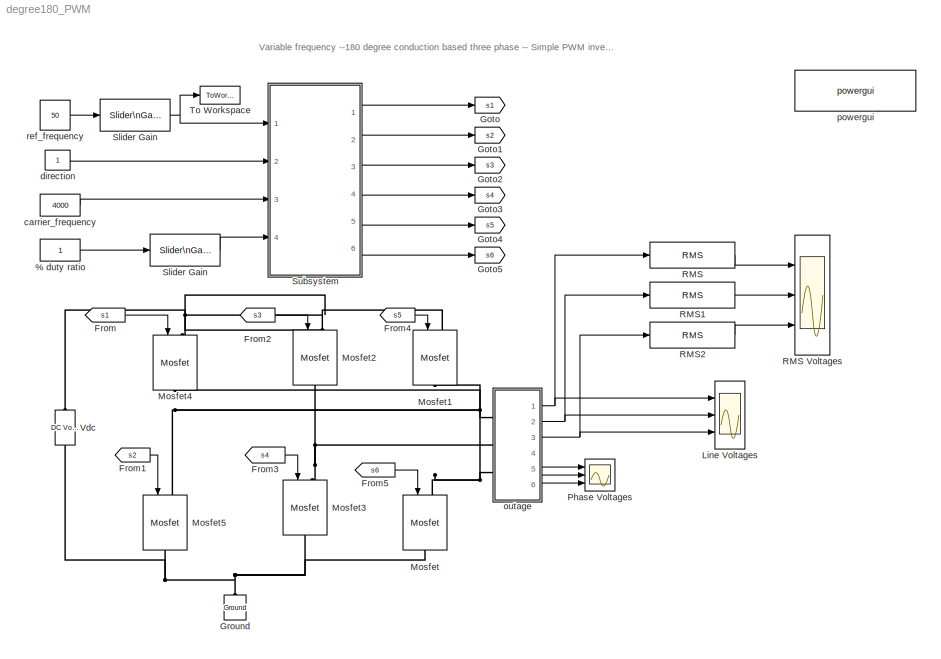
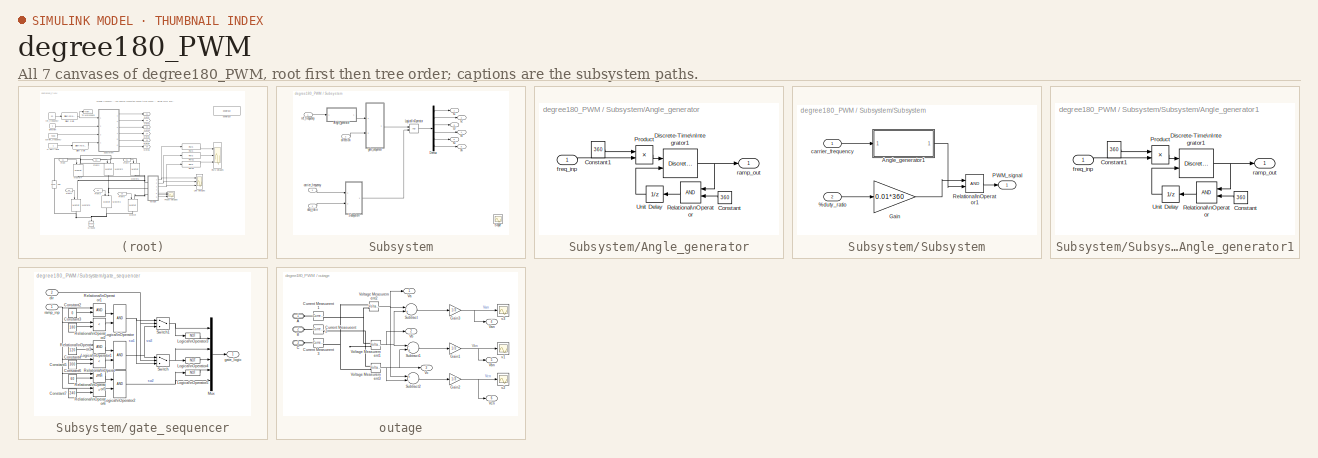
[diagram: thumbnail index - all 7 canvases of the model, root first then tree order]
MODEL degree180_PWM
KIND model
CONFIG InitFcn = Ts=5e-6;
BLOCK [Constant] % duty ratio
  SID = 165
BLOCK [From] From
  CloseFcn = tagdialog Close
  GotoTag = s1
  SID = 71
BLOCK [From] From1
  CloseFcn = tagdialog Close
  GotoTag = s2
  SID = 72
BLOCK [From] From2
  CloseFcn = tagdialog Close
  GotoTag = s3
  SID = 73
BLOCK [From] From3
  CloseFcn = tagdialog Close
  GotoTag = s4
  SID = 74
BLOCK [From] From4
  CloseFcn = tagdialog Close
  GotoTag = s5
  SID = 75
BLOCK [From] From5
  CloseFcn = tagdialog Close
  GotoTag = s6
  SID = 76
BLOCK [Goto] Goto
  GotoTag = s1
  SID = 123
BLOCK [Goto] Goto1
  GotoTag = s2
  SID = 124
BLOCK [Goto] Goto2
  GotoTag = s3
  SID = 125
BLOCK [Goto] Goto3
  GotoTag = s4
  SID = 126
BLOCK [Goto] Goto4
  GotoTag = s5
  SID = 127
BLOCK [Goto] Goto5
  GotoTag = s6
  SID = 128
BLOCK [Reference] Ground  REF=powerlib/Elements/Ground
  LConnTagsString = a
  Ports = [0, 0, 0, 0, 0, 1]
  SID = 77
  SourceBlock = powerlib/Elements/Ground
  SourceType = Ground
BLOCK [Scope] Line Voltages
  DataFormat = StructureWithTime
  Floating = off
  MaxDataPoints = 50000
  NumInputPorts = 3
  Ports = [3]
  SID = 94
  SampleInput = on
  SampleTime = 5e-6
  SaveName = Line_voltages
  ShowLegends = off
  TimeRange = 0.1
  YMax = 500~500~500
  YMin = -500~-500~-500
  ZoomMode = xonly
BLOCK [Reference] Mosfet  REF=powerlib/Power\nElectronics/Mosfet
  Cs = inf
  IC = 0
  Lon = 0
  Measurements = off
  Ports = [1, 0, 0, 0, 0, 1, 1]
  Rd = 0.01
  Ron = 0.1
  Rs = 1e5
  SID = 88
  SourceBlock = powerlib/Power\nElectronics/Mosfet
  SourceType = Mosfet
  Vfd = 0
BLOCK [Reference] Mosfet1  REF=powerlib/Power\nElectronics/Mosfet
  Cs = inf
  IC = 0
  Lon = 0
  Measurements = off
  Ports = [1, 0, 0, 0, 0, 1, 1]
  Rd = 0.01
  Ron = 0.1
  Rs = 1e5
  SID = 89
  SourceBlock = powerlib/Power\nElectronics/Mosfet
  SourceType = Mosfet
  Vfd = 0
BLOCK [Reference] Mosfet2  REF=powerlib/Power\nElectronics/Mosfet
  Cs = inf
  IC = 0
  Lon = 0
  Measurements = off
  Ports = [1, 0, 0, 0, 0, 1, 1]
  Rd = 0.01
  Ron = 0.1
  Rs = 1e5
  SID = 90
  SourceBlock = powerlib/Power\nElectronics/Mosfet
  SourceType = Mosfet
  Vfd = 0
BLOCK [Reference] Mosfet3  REF=powerlib/Power\nElectronics/Mosfet
  Cs = inf
  IC = 0
  Lon = 0
  Measurements = off
  Ports = [1, 0, 0, 0, 0, 1, 1]
  Rd = 0.01
  Ron = 0.1
  Rs = 1e5
  SID = 91
  SourceBlock = powerlib/Power\nElectronics/Mosfet
  SourceType = Mosfet
  Vfd = 0
BLOCK [Reference] Mosfet4  REF=powerlib/Power\nElectronics/Mosfet
  Cs = inf
  IC = 0
  Lon = 0
  Measurements = off
  Ports = [1, 0, 0, 0, 0, 1, 1]
  Rd = 0.01
  Ron = 0.1
  Rs = 1e5
  SID = 92
  SourceBlock = powerlib/Power\nElectronics/Mosfet
  SourceType = Mosfet
  Vfd = 0
BLOCK [Reference] Mosfet5  REF=powerlib/Power\nElectronics/Mosfet
  Cs = inf
  IC = 0
  Lon = 0
  Measurements = off
  Ports = [1, 0, 0, 0, 0, 1, 1]
  Rd = 0.01
  Ron = 0.1
  Rs = 1e5
  SID = 93
  SourceBlock = powerlib/Power\nElectronics/Mosfet
  SourceType = Mosfet
  Vfd = 0
BLOCK [Scope] Phase Voltages
  DataFormat = StructureWithTime
  Floating = off
  MaxDataPoints = 50000
  NumInputPorts = 3
  Ports = [3]
  SID = 95
  SampleInput = on
  SampleTime = 5e-6
  SaveName = Neutral_voltages
  ShowLegends = off
  TimeRange = 0.1
  YMax = 300~300~300
  YMin = -300~-300~-300
  ZoomMode = xonly
BLOCK [Reference] RMS  REF=powerlib_extras/Measurements/RMS
  Ports = [1, 1]
  SID = 173
  SourceBlock = powerlib_extras/Measurements/RMS
  SourceType = RMS
  f1 = 60
BLOCK [Scope] RMS Voltages
  DataFormat = StructureWithTime
  Floating = off
  MaxDataPoints = 50000
  NumInputPorts = 3
  Ports = [3]
  SID = 174
  SampleInput = on
  SampleTime = 5e-6
  SaveName = Neutral_voltages1
  ShowLegends = off
  TimeRange = 0.1
  YMax = 232.5~227.5~227.5
  YMin = 200~210~210
  ZoomMode = xonly
BLOCK [Reference] RMS1  REF=powerlib_extras/Measurements/RMS
  Ports = [1, 1]
  SID = 177
  SourceBlock = powerlib_extras/Measurements/RMS
  SourceType = RMS
  f1 = 60
BLOCK [Reference] RMS2  REF=powerlib_extras/Measurements/RMS
  Ports = [1, 1]
  SID = 178
  SourceBlock = powerlib_extras/Measurements/RMS
  SourceType = RMS
  f1 = 60
BLOCK [Reference] Slider Gain  REF=simulink/Math\nOperations/Slider\nGain
  Ports = [1, 1]
  SID = 129
  SourceBlock = simulink/Math\nOperations/Slider\nGain
  SourceType = Slider Gain
  gain = 1
  high = 4
  low = 0
BLOCK [Reference] Slider Gain    REF=simulink/Math\nOperations/Slider\nGain
  Ports = [1, 1]
  SID = 172
  SourceBlock = simulink/Math\nOperations/Slider\nGain
  SourceType = Slider Gain
  gain = 44.7005
  high = 100
  low = 0
BLOCK [SubSystem] Subsystem
  FunctionWithSeparateData = off
  MaskHideContents = off
  MinAlgLoopOccurrences = off
  Opaque = off
  Ports = [4, 6]
  PropExecContextOutsideSubsystem = off
  RTWSystemCode = Auto
  RequestExecContextInheritance = off
  SID = 141
BLOCK [SubSystem] Subsystem/Angle_generator
  FunctionWithSeparateData = off
  MaskHideContents = off
  MinAlgLoopOccurrences = off
  Opaque = off
  Ports = [1, 1]
  PropExecContextOutsideSubsystem = off
  RTWSystemCode = Auto
  RequestExecContextInheritance = off
  SID = 34
BLOCK [Constant] Subsystem/Angle_generator/Constant
  SID = 36
  Value = 360
BLOCK [Constant] Subsystem/Angle_generator/Constant1
  SID = 37
  Value = 360
BLOCK [DiscreteIntegrator] Subsystem/Angle_generator/Discrete-Time\nIntegrator1
  ExternalReset = rising
  ICPrevOutput = DiscIntNeverNeededParam
  ICPrevScaledInput = DiscIntNeverNeededParam
  IntegratorMethod = Integration: Trapezoidal
  Ports = [2, 1]
  SID = 38
  SampleTime = Ts
BLOCK [Product] Subsystem/Angle_generator/Product
  Ports = [2, 1]
  RndMeth = Floor
  SID = 39
BLOCK [RelationalOperator] Subsystem/Angle_generator/Relational\nOperator
  Ports = [2, 1]
  SID = 40
BLOCK [UnitDelay] Subsystem/Angle_generator/Unit Delay
  SID = 41
  SampleTime = Ts
BLOCK [Inport] Subsystem/Angle_generator/freq_inp
  IconDisplay = Port number
  SID = 35
BLOCK [Outport] Subsystem/Angle_generator/ramp_out
  IconDisplay = Port number
  SID = 42
BLOCK [Demux] Subsystem/Demux
  DisplayOption = bar
  Outputs = 6
  Ports = [1, 6]
  SID = 69
BLOCK [Logic] Subsystem/Logical\nOperator
  AllPortsSameDT = off
  OutDataTypeStr = boolean
  Ports = [2, 1]
  SID = 171
BLOCK [Scope] Subsystem/Scope
  DataFormat = StructureWithTime
  Floating = off
  MaxDataPoints = 5000000
  NumInputPorts = 3
  Ports = [3]
  SID = 163
  SampleTime = 0
  ShowLegends = off
  YMax = 5~5~5
  YMin = -5~-5~-5
  ZoomMode = xonly
BLOCK [SubSystem] Subsystem/Subsystem
  FunctionWithSeparateData = off
  MaskHideContents = off
  MinAlgLoopOccurrences = off
  Opaque = off
  Ports = [2, 1]
  PropExecContextOutsideSubsystem = off
  RTWSystemCode = Auto
  RequestExecContextInheritance = off
  SID = 167
BLOCK [Inport] Subsystem/Subsystem/%duty_ratio
  IconDisplay = Port number
  Port = 2
  SID = 170
BLOCK [SubSystem] Subsystem/Subsystem/Angle_generator1
  FunctionWithSeparateData = off
  MaskHideContents = off
  MinAlgLoopOccurrences = off
  Opaque = off
  Ports = [1, 1]
  PropExecContextOutsideSubsystem = off
  RTWSystemCode = Auto
  RequestExecContextInheritance = off
  SID = 150
BLOCK [Constant] Subsystem/Subsystem/Angle_generator1/Constant
  SID = 152
  Value = 360
BLOCK [Constant] Subsystem/Subsystem/Angle_generator1/Constant1
  SID = 153
  Value = 360
BLOCK [DiscreteIntegrator] Subsystem/Subsystem/Angle_generator1/Discrete-Time\nIntegrator1
  ExternalReset = rising
  ICPrevOutput = DiscIntNeverNeededParam
  ICPrevScaledInput = DiscIntNeverNeededParam
  IntegratorMethod = Integration: Trapezoidal
  Ports = [2, 1]
  SID = 154
  SampleTime = Ts
BLOCK [Product] Subsystem/Subsystem/Angle_generator1/Product
  Ports = [2, 1]
  RndMeth = Floor
  SID = 155
BLOCK [RelationalOperator] Subsystem/Subsystem/Angle_generator1/Relational\nOperator
  Ports = [2, 1]
  SID = 156
BLOCK [UnitDelay] Subsystem/Subsystem/Angle_generator1/Unit Delay
  SID = 157
  SampleTime = Ts
BLOCK [Inport] Subsystem/Subsystem/Angle_generator1/freq_inp
  IconDisplay = Port number
  SID = 151
BLOCK [Outport] Subsystem/Subsystem/Angle_generator1/ramp_out
  IconDisplay = Port number
  SID = 158
BLOCK [Gain] Subsystem/Subsystem/Gain
  Gain = 0.01*360
  OutDataTypeStr = Inherit: Inherit via internal rule
  ParamDataTypeStr = Inherit: Inherit via internal rule
  SID = 161
  SaturateOnIntegerOverflow = off
BLOCK [Outport] Subsystem/Subsystem/PWM_signal
  IconDisplay = Port number
  SID = 169
BLOCK [RelationalOperator] Subsystem/Subsystem/Relational\nOperator1
  Ports = [2, 1]
  SID = 162
BLOCK [Inport] Subsystem/Subsystem/carrier_frequency
  IconDisplay = Port number
  SID = 168
BLOCK [Inport] Subsystem/carrier_frequency
  IconDisplay = Port number
  Port = 3
  SID = 159
BLOCK [Inport] Subsystem/direction
  IconDisplay = Port number
  Port = 2
  SID = 148
BLOCK [Inport] Subsystem/duty_ratio
  IconDisplay = Port number
  Port = 4
  SID = 160
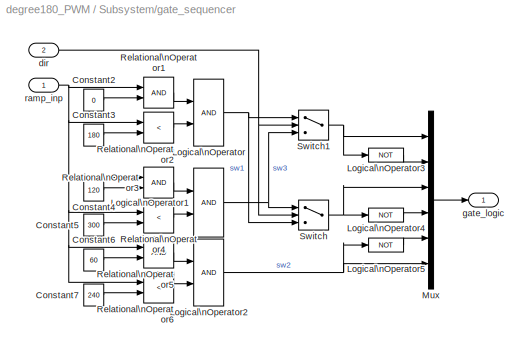
BLOCK [SubSystem] Subsystem/gate_sequencer
  FunctionWithSeparateData = off
  MaskHideContents = off
  MinAlgLoopOccurrences = off
  Opaque = off
  Ports = [2, 1]
  PropExecContextOutsideSubsystem = off
  RTWSystemCode = Auto
  RequestExecContextInheritance = off
  SID = 43
BLOCK [Constant] Subsystem/gate_sequencer/Constant2
  SID = 46
  Value = 0
BLOCK [Constant] Subsystem/gate_sequencer/Constant3
  SID = 47
  Value = 180
BLOCK [Constant] Subsystem/gate_sequencer/Constant4
  SID = 48
  Value = 120
BLOCK [Constant] Subsystem/gate_sequencer/Constant5
  SID = 49
  Value = 300
BLOCK [Constant] Subsystem/gate_sequencer/Constant6
  SID = 50
  Value = 60
BLOCK [Constant] Subsystem/gate_sequencer/Constant7
  SID = 51
  Value = 240
BLOCK [Logic] Subsystem/gate_sequencer/Logical\nOperator
  Ports = [2, 1]
  SID = 52
BLOCK [Logic] Subsystem/gate_sequencer/Logical\nOperator1
  Ports = [2, 1]
  SID = 53
BLOCK [Logic] Subsystem/gate_sequencer/Logical\nOperator2
  Ports = [2, 1]
  SID = 54
BLOCK [Logic] Subsystem/gate_sequencer/Logical\nOperator3
  Operator = NOT
  Ports = [1, 1]
  SID = 55
BLOCK [Logic] Subsystem/gate_sequencer/Logical\nOperator4
  Operator = NOT
  Ports = [1, 1]
  SID = 56
BLOCK [Logic] Subsystem/gate_sequencer/Logical\nOperator5
  Operator = NOT
  Ports = [1, 1]
  SID = 57
BLOCK [Mux] Subsystem/gate_sequencer/Mux
  DisplayOption = bar
  Inputs = 6
  Ports = [6, 1]
  SID = 58
BLOCK [RelationalOperator] Subsystem/gate_sequencer/Relational\nOperator1
  Ports = [2, 1]
  SID = 59
BLOCK [RelationalOperator] Subsystem/gate_sequencer/Relational\nOperator2
  Operator = <
  Ports = [2, 1]
  SID = 60
BLOCK [RelationalOperator] Subsystem/gate_sequencer/Relational\nOperator3
  Ports = [2, 1]
  SID = 61
BLOCK [RelationalOperator] Subsystem/gate_sequencer/Relational\nOperator4
  Operator = <
  Ports = [2, 1]
  SID = 62
BLOCK [RelationalOperator] Subsystem/gate_sequencer/Relational\nOperator5
  Ports = [2, 1]
  SID = 63
BLOCK [RelationalOperator] Subsystem/gate_sequencer/Relational\nOperator6
  Operator = <
  Ports = [2, 1]
  SID = 64
BLOCK [Switch] Subsystem/gate_sequencer/Switch
  SID = 65
  Threshold = 0.5
BLOCK [Switch] Subsystem/gate_sequencer/Switch1
  SID = 66
  Threshold = 0.5
BLOCK [Inport] Subsystem/gate_sequencer/dir
  IconDisplay = Port number
  Port = 2
  SID = 45
BLOCK [Outport] Subsystem/gate_sequencer/gate_logic
  IconDisplay = Port number
  SID = 67
BLOCK [Inport] Subsystem/gate_sequencer/ramp_inp
  IconDisplay = Port number
  SID = 44
BLOCK [Inport] Subsystem/ref_frequency
  IconDisplay = Port number
  SID = 143
BLOCK [Outport] Subsystem/s1
  IconDisplay = Port number
  SID = 142
BLOCK [Outport] Subsystem/s2
  IconDisplay = Port number
  Port = 2
  SID = 144
BLOCK [Outport] Subsystem/s3
  IconDisplay = Port number
  Port = 3
  SID = 145
BLOCK [Outport] Subsystem/s4
  IconDisplay = Port number
  Port = 4
  SID = 146
BLOCK [Outport] Subsystem/s5
  IconDisplay = Port number
  Port = 5
  SID = 147
BLOCK [Outport] Subsystem/s6
  IconDisplay = Port number
  Port = 6
  SID = 149
BLOCK [ToWorkspace] To Workspace
  MaxDataPoints = inf
  Ports = [1]
  SID = 176
  SampleTime = -1
  SaveFormat = Structure
  VariableName = fr
BLOCK [Reference] Vdc  REF=powerlib/Electrical\nSources/DC Voltage Source
  Amplitude = 400
  Measurements = None
  Ports = [0, 0, 0, 0, 0, 1, 1]
  SID = 97
  SourceBlock = powerlib/Electrical\nSources/DC Voltage Source
  SourceType = DC Voltage Source
BLOCK [Constant] carrier_frequency
  SID = 164
  Value = 4000
BLOCK [Constant] direction
  SID = 70
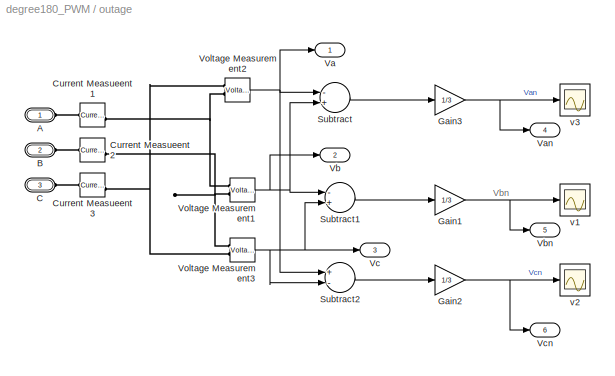
BLOCK [SubSystem] outage
  FunctionWithSeparateData = off
  MaskHideContents = off
  MinAlgLoopOccurrences = off
  Opaque = off
  Ports = [0, 6, 0, 0, 0, 3]
  PropExecContextOutsideSubsystem = off
  RTWSystemCode = Auto
  RequestExecContextInheritance = off
  SID = 98
BLOCK [PMIOPort] outage/A
  Port = 1
  SID = 114
  Side = Left
BLOCK [PMIOPort] outage/B
  Port = 2
  SID = 115
  Side = Left
BLOCK [PMIOPort] outage/C
  Port = 3
  SID = 116
  Side = Left
BLOCK [Reference] outage/Current Measueent1  REF=powerlib/Measurements/Current Measurement
  OutputType = Complex
  PSBequivalent = 0
  PhasorSimulation = off
  Ports = [0, 1, 0, 0, 0, 1, 1]
  SID = 99
  SourceBlock = powerlib/Measurements/Current Measurement
  SourceType = Current Measurement
BLOCK [Reference] outage/Current Measueent2  REF=powerlib/Measurements/Current Measurement
  OutputType = Complex
  PSBequivalent = 0
  PhasorSimulation = off
  Ports = [0, 1, 0, 0, 0, 1, 1]
  SID = 100
  SourceBlock = powerlib/Measurements/Current Measurement
  SourceType = Current Measurement
BLOCK [Reference] outage/Current Measueent3  REF=powerlib/Measurements/Current Measurement
  OutputType = Complex
  PSBequivalent = 0
  PhasorSimulation = off
  Ports = [0, 1, 0, 0, 0, 1, 1]
  SID = 101
  SourceBlock = powerlib/Measurements/Current Measurement
  SourceType = Current Measurement
BLOCK [Gain] outage/Gain1
  Gain = 1/3
  OutDataTypeStr = Inherit: Inherit via internal rule
  ParamDataTypeStr = Inherit: Inherit via internal rule
  SID = 102
  SaturateOnIntegerOverflow = off
BLOCK [Gain] outage/Gain2
  Gain = 1/3
  OutDataTypeStr = Inherit: Inherit via internal rule
  ParamDataTypeStr = Inherit: Inherit via internal rule
  SID = 103
  SaturateOnIntegerOverflow = off
BLOCK [Gain] outage/Gain3
  Gain = 1/3
  OutDataTypeStr = Inherit: Inherit via internal rule
  ParamDataTypeStr = Inherit: Inherit via internal rule
  SID = 104
  SaturateOnIntegerOverflow = off
BLOCK [Sum] outage/Subtract
  InputSameDT = off
  Inputs = -+
  OutDataTypeStr = Inherit: Inherit via internal rule
  Ports = [2, 1]
  SID = 105
  SaturateOnIntegerOverflow = off
BLOCK [Sum] outage/Subtract1
  InputSameDT = off
  Inputs = -+
  OutDataTypeStr = Inherit: Inherit via internal rule
  Ports = [2, 1]
  SID = 106
  SaturateOnIntegerOverflow = off
BLOCK [Sum] outage/Subtract2
  InputSameDT = off
  Inputs = +-
  OutDataTypeStr = Inherit: Inherit via internal rule
  Ports = [2, 1]
  SID = 107
  SaturateOnIntegerOverflow = off
BLOCK [Outport] outage/Va
  IconDisplay = Port number
  SID = 117
BLOCK [Outport] outage/Van
  IconDisplay = Port number
  Port = 4
  SID = 120
BLOCK [Outport] outage/Vb
  IconDisplay = Port number
  Port = 2
  SID = 118
BLOCK [Outport] outage/Vbn
  IconDisplay = Port number
  Port = 5
  SID = 121
BLOCK [Outport] outage/Vc
  IconDisplay = Port number
  Port = 3
  SID = 119
BLOCK [Outport] outage/Vcn
  IconDisplay = Port number
  Port = 6
  SID = 122
BLOCK [Reference] outage/Voltage Measurement1  REF=powerlib/Measurements/Voltage Measurement
  OutputType = Complex
  PSBequivalent = 0
  PhasorSimulation = off
  Ports = [0, 1, 0, 0, 0, 2]
  SID = 108
  SourceBlock = powerlib/Measurements/Voltage Measurement
  SourceType = Voltage Measurement
BLOCK [Reference] outage/Voltage Measurement2  REF=powerlib/Measurements/Voltage Measurement
  OutputType = Complex
  PSBequivalent = 0
  PhasorSimulation = off
  Ports = [0, 1, 0, 0, 0, 2]
  SID = 109
  SourceBlock = powerlib/Measurements/Voltage Measurement
  SourceType = Voltage Measurement
BLOCK [Reference] outage/Voltage Measurement3  REF=powerlib/Measurements/Voltage Measurement
  OutputType = Complex
  PSBequivalent = 0
  PhasorSimulation = off
  Ports = [0, 1, 0, 0, 0, 2]
  SID = 110
  SourceBlock = powerlib/Measurements/Voltage Measurement
  SourceType = Voltage Measurement
BLOCK [Scope] outage/v1
  DataFormat = StructureWithTime
  Floating = off
  MaxDataPoints = 5000000
  NumInputPorts = 1
  Ports = [1]
  SID = 111
  SampleTime = 0
  SaveName = ScopeData25
  ShowLegends = off
BLOCK [Scope] outage/v2
  DataFormat = StructureWithTime
  Floating = off
  MaxDataPoints = 5000000
  NumInputPorts = 1
  Ports = [1]
  SID = 112
  SampleTime = 0
  SaveName = ScopeData26
  ShowLegends = off
BLOCK [Scope] outage/v3
  DataFormat = StructureWithTime
  Floating = off
  MaxDataPoints = 5000000
  NumInputPorts = 1
  Ports = [1]
  SID = 113
  SampleTime = 0
  SaveName = ScopeData27
  ShowLegends = off
  YMax = 300
  YMin = -300
BLOCK [Reference] powergui  REF=powerlib/powergui
  DisableRonSwitches = off
  DisableSnubberDevices = off
  DisableVfSwitches = off
  DisplayEquations = off
  DisplayStyle = 2
  EnableUseOfTLC = off
  ErrMax = 1e-4
  Frange = [0:2:500]
  FreqAxis = off
  FunctionMessages = off
  HookPort = off
  Interpol = off
  Iterations = 50
  MaxFrequency = 1000
  Pbase = 100e6
  Ports = []
  Priority = 1
  ResistiveCurrentMeasurement = off
  RestoreLinks = warning
  RmsSteady = 1
  SID = 130
  SPID = off
  SampleTime = Ts
  ShowGrid = off
  SolverType = Tustin
  SourceBlock = powerlib/powergui
  SourceType = PSB option menu block
  StartTime = 1.4
  SwTol = 0
  Ts = 0
  UnitsV = kV
  UnitsW = MW
  UserData = DataTag0
  UserDataPersistent = on
  Xlog = on
  Ylog = off
  ZoomFFT = off
  cycles = 5
  display = off
  echomessages = off
  frequency = 60
  frequencyindice = 0
  frequencyindicesteady = 1
  fundamental = fr
  methode = off
  save = off
  structure = Line_voltages
  variable = ZData
  x0status = blocks
BLOCK [Constant] ref_frequency
  SID = 32
  Value = 50
ANNOTATION (root): Variable frequency --180 degree conduction based three phase -- Simple PWM inverter
ANNOTATION outage: Vbn
LINE % duty ratio:1 -> Slider Gain  :1
LINE From1:1 -> Mosfet5:1
LINE From2:1 -> Mosfet2:1
LINE From3:1 -> Mosfet3:1
LINE From4:1 -> Mosfet1:1
LINE From5:1 -> Mosfet:1
LINE From:1 -> Mosfet4:1
LINE RMS1:1 -> RMS Voltages:2
LINE RMS2:1 -> RMS Voltages:3
LINE RMS:1 -> RMS Voltages:1
LINE Slider Gain  :1 -> Subsystem:4
NET Slider Gain:1 -> Subsystem:1, To Workspace:1
LINE Subsystem/Angle_generator/Constant1:1 -> Subsystem/Angle_generator/Product:1
LINE Subsystem/Angle_generator/Constant:1 -> Subsystem/Angle_generator/Relational\nOperator:2
NET Subsystem/Angle_generator/Discrete-Time\nIntegrator1:1 -> Subsystem/Angle_generator/Relational\nOperator:1, Subsystem/Angle_generator/ramp_out:1
LINE Subsystem/Angle_generator/Product:1 -> Subsystem/Angle_generator/Discrete-Time\nIntegrator1:1
LINE Subsystem/Angle_generator/Relational\nOperator:1 -> Subsystem/Angle_generator/Unit Delay:1
LINE Subsystem/Angle_generator/Unit Delay:1 -> Subsystem/Angle_generator/Discrete-Time\nIntegrator1:2
LINE Subsystem/Angle_generator/freq_inp:1 -> Subsystem/Angle_generator/Product:2
LINE Subsystem/Angle_generator:1 -> Subsystem/gate_sequencer:1
LINE Subsystem/Demux:1 -> Subsystem/s1:1
LINE Subsystem/Demux:2 -> Subsystem/s2:1
LINE Subsystem/Demux:3 -> Subsystem/s3:1
LINE Subsystem/Demux:4 -> Subsystem/s4:1
LINE Subsystem/Demux:5 -> Subsystem/s5:1
LINE Subsystem/Demux:6 -> Subsystem/s6:1
LINE Subsystem/Logical\nOperator:1 -> Subsystem/Demux:1
LINE Subsystem/Subsystem/%duty_ratio:1 -> Subsystem/Subsystem/Gain:1
LINE Subsystem/Subsystem/Angle_generator1/Constant1:1 -> Subsystem/Subsystem/Angle_generator1/Product:1
LINE Subsystem/Subsystem/Angle_generator1/Constant:1 -> Subsystem/Subsystem/Angle_generator1/Relational\nOperator:2
NET Subsystem/Subsystem/Angle_generator1/Discrete-Time\nIntegrator1:1 -> Subsystem/Subsystem/Angle_generator1/Relational\nOperator:1, Subsystem/Subsystem/Angle_generator1/ramp_out:1
LINE Subsystem/Subsystem/Angle_generator1/Product:1 -> Subsystem/Subsystem/Angle_generator1/Discrete-Time\nIntegrator1:1
LINE Subsystem/Subsystem/Angle_generator1/Relational\nOperator:1 -> Subsystem/Subsystem/Angle_generator1/Unit Delay:1
LINE Subsystem/Subsystem/Angle_generator1/Unit Delay:1 -> Subsystem/Subsystem/Angle_generator1/Discrete-Time\nIntegrator1:2
LINE Subsystem/Subsystem/Angle_generator1/freq_inp:1 -> Subsystem/Subsystem/Angle_generator1/Product:2
LINE Subsystem/Subsystem/Angle_generator1:1 -> Subsystem/Subsystem/Relational\nOperator1:2
LINE Subsystem/Subsystem/Gain:1 -> Subsystem/Subsystem/Relational\nOperator1:1
LINE Subsystem/Subsystem/Relational\nOperator1:1 -> Subsystem/Subsystem/PWM_signal:1
LINE Subsystem/Subsystem/carrier_frequency:1 -> Subsystem/Subsystem/Angle_generator1:1
LINE Subsystem/Subsystem:1 -> Subsystem/Logical\nOperator:2
LINE Subsystem/carrier_frequency:1 -> Subsystem/Subsystem:1
LINE Subsystem/direction:1 -> Subsystem/gate_sequencer:2
LINE Subsystem/duty_ratio:1 -> Subsystem/Subsystem:2
LINE Subsystem/gate_sequencer/Constant2:1 -> Subsystem/gate_sequencer/Relational\nOperator1:2
LINE Subsystem/gate_sequencer/Constant3:1 -> Subsystem/gate_sequencer/Relational\nOperator2:2
LINE Subsystem/gate_sequencer/Constant4:1 -> Subsystem/gate_sequencer/Relational\nOperator3:2
LINE Subsystem/gate_sequencer/Constant5:1 -> Subsystem/gate_sequencer/Relational\nOperator4:2
LINE Subsystem/gate_sequencer/Constant6:1 -> Subsystem/gate_sequencer/Relational\nOperator5:2
LINE Subsystem/gate_sequencer/Constant7:1 -> Subsystem/gate_sequencer/Relational\nOperator6:2
NET Subsystem/gate_sequencer/Logical\nOperator1:1 -> Subsystem/gate_sequencer/Switch1:3, Subsystem/gate_sequencer/Switch:1
NET Subsystem/gate_sequencer/Logical\nOperator2:1 -> Subsystem/gate_sequencer/Logical\nOperator5:1, Subsystem/gate_sequencer/Mux:6
LINE Subsystem/gate_sequencer/Logical\nOperator3:1 -> Subsystem/gate_sequencer/Mux:2
LINE Subsystem/gate_sequencer/Logical\nOperator4:1 -> Subsystem/gate_sequencer/Mux:4
LINE Subsystem/gate_sequencer/Logical\nOperator5:1 -> Subsystem/gate_sequencer/Mux:5
NET Subsystem/gate_sequencer/Logical\nOperator:1 -> Subsystem/gate_sequencer/Switch1:1, Subsystem/gate_sequencer/Switch:3
LINE Subsystem/gate_sequencer/Mux:1 -> Subsystem/gate_sequencer/gate_logic:1
LINE Subsystem/gate_sequencer/Relational\nOperator1:1 -> Subsystem/gate_sequencer/Logical\nOperator:1
LINE Subsystem/gate_sequencer/Relational\nOperator2:1 -> Subsystem/gate_sequencer/Logical\nOperator:2
LINE Subsystem/gate_sequencer/Relational\nOperator3:1 -> Subsystem/gate_sequencer/Logical\nOperator1:1
LINE Subsystem/gate_sequencer/Relational\nOperator4:1 -> Subsystem/gate_sequencer/Logical\nOperator1:2
LINE Subsystem/gate_sequencer/Relational\nOperator5:1 -> Subsystem/gate_sequencer/Logical\nOperator2:1
LINE Subsystem/gate_sequencer/Relational\nOperator6:1 -> Subsystem/gate_sequencer/Logical\nOperator2:2
NET Subsystem/gate_sequencer/Switch1:1 -> Subsystem/gate_sequencer/Logical\nOperator3:1, Subsystem/gate_sequencer/Mux:1
NET Subsystem/gate_sequencer/Switch:1 -> Subsystem/gate_sequencer/Logical\nOperator4:1, Subsystem/gate_sequencer/Mux:3
NET Subsystem/gate_sequencer/dir:1 -> Subsystem/gate_sequencer/Switch1:2, Subsystem/gate_sequencer/Switch:2
NET Subsystem/gate_sequencer/ramp_inp:1 -> Subsystem/gate_sequencer/Relational\nOperator1:1, Subsystem/gate_sequencer/Relational\nOperator2:1, Subsystem/gate_sequencer/Relational\nOperator3:1, Subsystem/gate_sequencer/Relational\nOperator4:1, Subsystem/gate_sequencer/Relational\nOperator5:1, Subsystem/gate_sequencer/Relational\nOperator6:1
LINE Subsystem/gate_sequencer:1 -> Subsystem/Logical\nOperator:1
LINE Subsystem/ref_frequency:1 -> Subsystem/Angle_generator:1
LINE Subsystem:1 -> Goto:1
LINE Subsystem:2 -> Goto1:1
LINE Subsystem:3 -> Goto2:1
LINE Subsystem:4 -> Goto3:1
LINE Subsystem:5 -> Goto4:1
LINE Subsystem:6 -> Goto5:1
LINE carrier_frequency:1 -> Subsystem:3
LINE direction:1 -> Subsystem:2
NET outage/Gain1:1 -> outage/Vbn:1, outage/v1:1
NET outage/Gain2:1 -> outage/Vcn:1, outage/v2:1
NET outage/Gain3:1 -> outage/Van:1, outage/v3:1
LINE outage/Subtract1:1 -> outage/Gain1:1
LINE outage/Subtract2:1 -> outage/Gain2:1
LINE outage/Subtract:1 -> outage/Gain3:1
NET outage/Voltage Measurement1:1 -> outage/Subtract1:1, outage/Subtract:2, outage/Vb:1
NET outage/Voltage Measurement2:1 -> outage/Subtract2:1, outage/Subtract:1, outage/Va:1
NET outage/Voltage Measurement3:1 -> outage/Subtract1:2, outage/Subtract2:2, outage/Vc:1
NET outage:1 -> Line Voltages:1, RMS:1
NET outage:2 -> Line Voltages:2, RMS1:1
NET outage:3 -> Line Voltages:3, RMS2:1
LINE outage:4 -> Phase Voltages:1
LINE outage:5 -> Phase Voltages:2
LINE outage:6 -> Phase Voltages:3
LINE ref_frequency:1 -> Slider Gain:1
PNET net1: Ground:LConn1 -- Mosfet3:RConn1 -- Mosfet5:RConn1 -- Mosfet:RConn1 -- Vdc:LConn1
PNET net2: Mosfet1:LConn1 -- Mosfet2:LConn1 -- Mosfet4:LConn1 -- Vdc:RConn1
PNET net3: Mosfet1:RConn1 -- Mosfet:LConn1 -- outage:LConn3
PNET net4: Mosfet2:RConn1 -- Mosfet3:LConn1 -- outage:LConn2
PNET net5: Mosfet4:RConn1 -- Mosfet5:LConn1 -- outage:LConn1
PLINE outage/A:RConn1 -- outage/Current Measueent1:LConn1
PLINE outage/B:RConn1 -- outage/Current Measueent2:LConn1
PLINE outage/C:RConn1 -- outage/Current Measueent3:LConn1
PNET net6: outage/Current Measueent1:RConn1 -- outage/Voltage Measurement1:LConn1 -- outage/Voltage Measurement2:LConn2
PNET net7: outage/Current Measueent2:RConn1 -- outage/Voltage Measurement1:LConn2 -- outage/Voltage Measurement3:LConn1
PNET net8: outage/Current Measueent3:RConn1 -- outage/Voltage Measurement2:LConn1 -- outage/Voltage Measurement3:LConn2
note: NET lines group one-source signal fan-out (src -> all destinations, sorted); 1:1 wires keep LINE; PNET lines group multi-terminal physical nets as a canonical sorted terminal list (undirected conserving connections); 2-terminal nets keep the pairwise PLINE form
